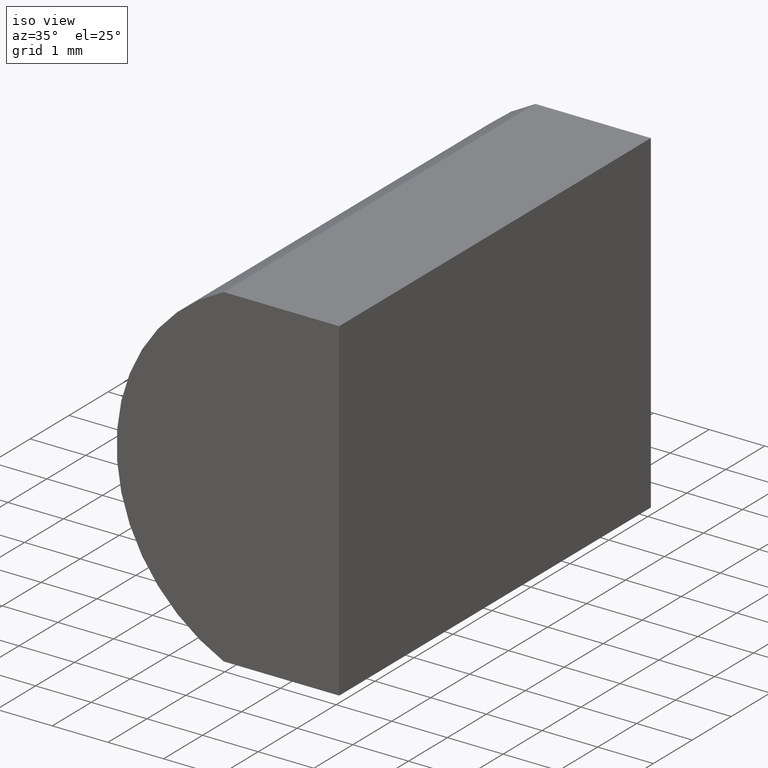
[diagram: clean part render]
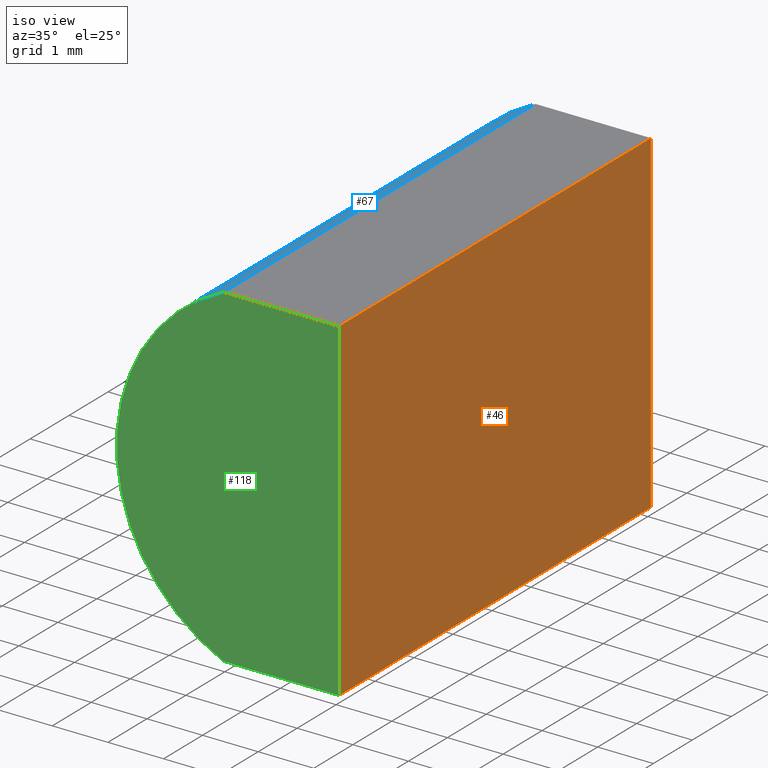
[diagram: same view with three faces highlighted in distinct colors, each labeled with its STEP entity id]
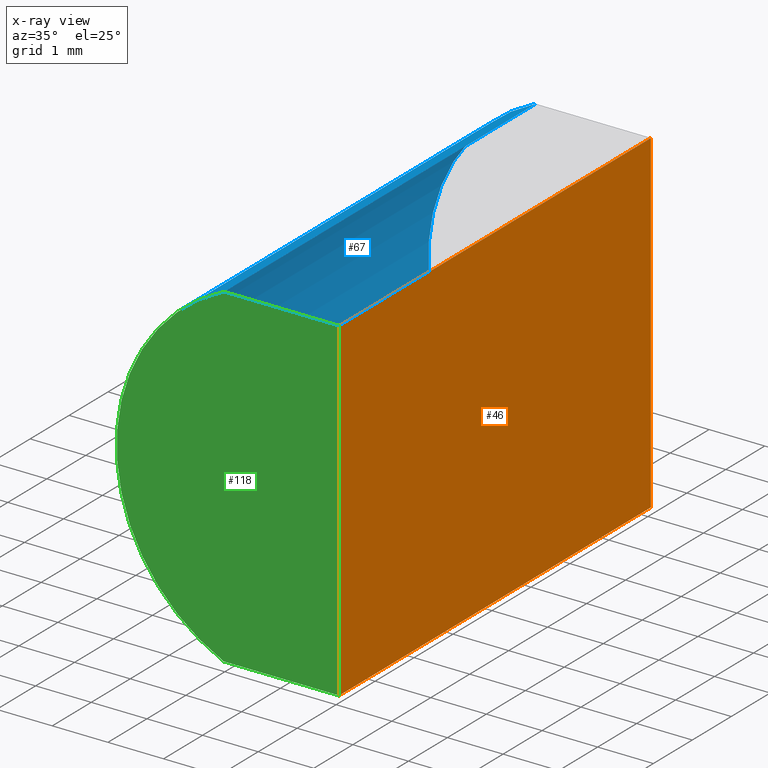
[diagram: x-ray of the same camera — body ghosted, the three highlighted faces saturated]
A machine part, iso view with three faces highlighted in distinct colors.
The next image is the same camera in x-ray (body ghosted, the three faces saturated) — at least one of them is partly hidden behind the body in this view.
Their STEP definitions:

[orange] entity #46 — the highlighted planar face has unit normal (-1, 0, 0).
#1 = ORIENTED_EDGE ( 'NONE', *, *, #180, .T. ) ;
#6 = CARTESIAN_POINT ( 'NONE',  ( 5.055204334851266500, 0.0000000000000000000, 3.000000000000000000 ) ) ;
#13 = ORIENTED_EDGE ( 'NONE', *, *, #186, .T. ) ;
#20 = PLANE ( 'NONE',  #135 ) ;
#32 = CARTESIAN_POINT ( 'NONE',  ( 5.055204334851264700, 8.000000000000000000, -3.000000000000000900 ) ) ;
#39 = FACE_OUTER_BOUND ( 'NONE', #127, .T. ) ;
#41 = DIRECTION ( 'NONE',  ( -0.0000000000000000000, -1.000000000000000000, -0.0000000000000000000 ) ) ;
#44 = ORIENTED_EDGE ( 'NONE', *, *, #141, .F. ) ;
#45 = CARTESIAN_POINT ( 'NONE',  ( 5.055204334851266500, 8.000000000000000000, 3.000000000000000000 ) ) ;
#46 = ADVANCED_FACE ( 'NONE', ( #39 ), #20, .F. ) ;
#49 = LINE ( 'NONE', #175, #144 ) ;
#52 = ORIENTED_EDGE ( 'NONE', *, *, #176, .F. ) ;
#53 = LINE ( 'NONE', #64, #199 ) ;
#59 = VERTEX_POINT ( 'NONE', #32 ) ;
#64 = CARTESIAN_POINT ( 'NONE',  ( 5.055204334851266500, 8.000000000000000000, 3.000000000000000000 ) ) ;
#70 = LINE ( 'NONE', #143, #104 ) ;
#74 = LINE ( 'NONE', #88, #156 ) ;
#75 = DIRECTION ( 'NONE',  ( -1.000000000000000000, 0.0000000000000000000, 2.891205793294678300E-016 ) ) ;
#88 = CARTESIAN_POINT ( 'NONE',  ( 5.055204334851264700, 8.000000000000000000, -3.000000000000000900 ) ) ;
#95 = DIRECTION ( 'NONE',  ( -2.891205793294678300E-016, -0.0000000000000000000, -1.000000000000000000 ) ) ;
#103 = DIRECTION ( 'NONE',  ( -0.0000000000000000000, -1.000000000000000000, -0.0000000000000000000 ) ) ;
#104 = VECTOR ( 'NONE', #41, 1000.000000000000000 ) ;
#115 = VERTEX_POINT ( 'NONE', #45 ) ;
#127 = EDGE_LOOP ( 'NONE', ( #13, #52, #44, #1 ) ) ;
#135 = AXIS2_PLACEMENT_3D ( 'NONE', #187, #75, #158 ) ;
#141 = EDGE_CURVE ( 'NONE', #115, #59, #74, .T. ) ;
#143 = CARTESIAN_POINT ( 'NONE',  ( 5.055204334851264700, 8.000000000000000000, -3.000000000000000900 ) ) ;
#144 = VECTOR ( 'NONE', #165, 1000.000000000000000 ) ;
#156 = VECTOR ( 'NONE', #95, 1000.000000000000000 ) ;
#158 = DIRECTION ( 'NONE',  ( 2.891205793294678300E-016, 0.0000000000000000000, 1.000000000000000000 ) ) ;
#163 = CARTESIAN_POINT ( 'NONE',  ( 5.055204334851264700, 0.0000000000000000000, -3.000000000000000900 ) ) ;
#165 = DIRECTION ( 'NONE',  ( -2.891205793294678300E-016, -0.0000000000000000000, -1.000000000000000000 ) ) ;
#175 = CARTESIAN_POINT ( 'NONE',  ( 5.055204334851264700, 0.0000000000000000000, -3.000000000000000900 ) ) ;
#176 = EDGE_CURVE ( 'NONE', #59, #179, #70, .T. ) ;
#179 = VERTEX_POINT ( 'NONE', #163 ) ;
#180 = EDGE_CURVE ( 'NONE', #115, #185, #53, .T. ) ;
#185 = VERTEX_POINT ( 'NONE', #6 ) ;
#186 = EDGE_CURVE ( 'NONE', #185, #179, #49, .T. ) ;
#187 = CARTESIAN_POINT ( 'NONE',  ( 5.055204334851264700, 8.000000000000000000, -3.000000000000000900 ) ) ;
#199 = VECTOR ( 'NONE', #103, 1000.000000000000000 ) ;

[blue] entity #67 — the highlighted cylindrical surface (partial cylindrical patch) has radius 3.3 mm, axis along (-0, -1, -0).
#2 = VECTOR ( 'NONE', #34, 1000.000000000000000 ) ;
#5 = DIRECTION ( 'NONE',  ( 0.0000000000000000000, 0.0000000000000000000, 1.000000000000000000 ) ) ;
#10 = EDGE_CURVE ( 'NONE', #120, #190, #196, .T. ) ;
#17 = DIRECTION ( 'NONE',  ( 0.0000000000000000000, 0.0000000000000000000, 1.000000000000000000 ) ) ;
#31 = CARTESIAN_POINT ( 'NONE',  ( 2.980431626364513400, 8.000000000000000000, 3.000000000000000400 ) ) ;
#34 = DIRECTION ( 'NONE',  ( -0.0000000000000000000, -1.000000000000000000, -0.0000000000000000000 ) ) ;
#35 = CARTESIAN_POINT ( 'NONE',  ( 4.355204334851265500, 0.0000000000000000000, 4.286263797015675000E-017 ) ) ;
#40 = EDGE_CURVE ( 'NONE', #90, #71, #43, .T. ) ;
#43 = LINE ( 'NONE', #31, #91 ) ;
#51 = CARTESIAN_POINT ( 'NONE',  ( 2.980431626364513400, 8.000000000000000000, -2.999999999999999600 ) ) ;
#56 = CARTESIAN_POINT ( 'NONE',  ( 2.980431626364513400, 0.0000000000000000000, -2.999999999999999600 ) ) ;
#63 = AXIS2_PLACEMENT_3D ( 'NONE', #131, #155, #202 ) ;
#67 = ADVANCED_FACE ( 'NONE', ( #130 ), #121, .T. ) ;
#71 = VERTEX_POINT ( 'NONE', #114 ) ;
#77 = AXIS2_PLACEMENT_3D ( 'NONE', #110, #195, #17 ) ;
#82 = DIRECTION ( 'NONE',  ( -0.0000000000000000000, -1.000000000000000000, -0.0000000000000000000 ) ) ;
#90 = VERTEX_POINT ( 'NONE', #136 ) ;
#91 = VECTOR ( 'NONE', #82, 1000.000000000000000 ) ;
#99 = EDGE_CURVE ( 'NONE', #190, #71, #177, .T. ) ;
#101 = EDGE_LOOP ( 'NONE', ( #157, #203, #133, #138 ) ) ;
#107 = AXIS2_PLACEMENT_3D ( 'NONE', #35, #111, #5 ) ;
#110 = CARTESIAN_POINT ( 'NONE',  ( 4.355204334851265500, 8.000000000000000000, 4.286263797015675000E-017 ) ) ;
#111 = DIRECTION ( 'NONE',  ( 0.0000000000000000000, 1.000000000000000000, 0.0000000000000000000 ) ) ;
#114 = CARTESIAN_POINT ( 'NONE',  ( 2.980431626364513400, 0.0000000000000000000, 3.000000000000000400 ) ) ;
#120 = VERTEX_POINT ( 'NONE', #51 ) ;
#121 = CYLINDRICAL_SURFACE ( 'NONE', #63, 3.299999999999999800 ) ;
#130 = FACE_OUTER_BOUND ( 'NONE', #101, .T. ) ;
#131 = CARTESIAN_POINT ( 'NONE',  ( 4.355204334851265500, 8.000000000000000000, 4.286263797015675000E-017 ) ) ;
#132 = EDGE_CURVE ( 'NONE', #120, #90, #200, .T. ) ;
#133 = ORIENTED_EDGE ( 'NONE', *, *, #132, .F. ) ;
#136 = CARTESIAN_POINT ( 'NONE',  ( 2.980431626364513400, 8.000000000000000000, 3.000000000000000400 ) ) ;
#138 = ORIENTED_EDGE ( 'NONE', *, *, #10, .T. ) ;
#140 = CARTESIAN_POINT ( 'NONE',  ( 2.980431626364513400, 8.000000000000000000, -2.999999999999999600 ) ) ;
#155 = DIRECTION ( 'NONE',  ( -0.0000000000000000000, -1.000000000000000000, -0.0000000000000000000 ) ) ;
#157 = ORIENTED_EDGE ( 'NONE', *, *, #99, .T. ) ;
#177 = CIRCLE ( 'NONE', #107, 3.299999999999999800 ) ;
#190 = VERTEX_POINT ( 'NONE', #56 ) ;
#195 = DIRECTION ( 'NONE',  ( 0.0000000000000000000, 1.000000000000000000, 0.0000000000000000000 ) ) ;
#196 = LINE ( 'NONE', #140, #2 ) ;
#200 = CIRCLE ( 'NONE', #77, 3.299999999999999800 ) ;
#202 = DIRECTION ( 'NONE',  ( 0.0000000000000000000, 0.0000000000000000000, -1.000000000000000000 ) ) ;
#203 = ORIENTED_EDGE ( 'NONE', *, *, #40, .F. ) ;

[green] entity #118 — the highlighted planar face has unit normal (0, 1, 0).
#5 = DIRECTION ( 'NONE',  ( 0.0000000000000000000, 0.0000000000000000000, 1.000000000000000000 ) ) ;
#6 = CARTESIAN_POINT ( 'NONE',  ( 5.055204334851266500, 0.0000000000000000000, 3.000000000000000000 ) ) ;
#8 = EDGE_CURVE ( 'NONE', #179, #190, #172, .T. ) ;
#9 = DIRECTION ( 'NONE',  ( 0.0000000000000000000, -0.0000000000000000000, 1.000000000000000000 ) ) ;
#16 = ORIENTED_EDGE ( 'NONE', *, *, #8, .F. ) ;
#27 = VECTOR ( 'NONE', #150, 1000.000000000000000 ) ;
#35 = CARTESIAN_POINT ( 'NONE',  ( 4.355204334851265500, 0.0000000000000000000, 4.286263797015675000E-017 ) ) ;
#47 = FACE_OUTER_BOUND ( 'NONE', #65, .T. ) ;
#49 = LINE ( 'NONE', #175, #144 ) ;
#56 = CARTESIAN_POINT ( 'NONE',  ( 2.980431626364513400, 0.0000000000000000000, -2.999999999999999600 ) ) ;
#58 = AXIS2_PLACEMENT_3D ( 'NONE', #192, #149, #9 ) ;
#65 = EDGE_LOOP ( 'NONE', ( #193, #16, #94, #97 ) ) ;
#71 = VERTEX_POINT ( 'NONE', #114 ) ;
#79 = CARTESIAN_POINT ( 'NONE',  ( 2.980431626364513400, 0.0000000000000000000, -2.999999999999999600 ) ) ;
#83 = LINE ( 'NONE', #160, #178 ) ;
#84 = EDGE_CURVE ( 'NONE', #71, #185, #83, .T. ) ;
#94 = ORIENTED_EDGE ( 'NONE', *, *, #186, .F. ) ;
#97 = ORIENTED_EDGE ( 'NONE', *, *, #84, .F. ) ;
#99 = EDGE_CURVE ( 'NONE', #190, #71, #177, .T. ) ;
#107 = AXIS2_PLACEMENT_3D ( 'NONE', #35, #111, #5 ) ;
#111 = DIRECTION ( 'NONE',  ( 0.0000000000000000000, 1.000000000000000000, 0.0000000000000000000 ) ) ;
#114 = CARTESIAN_POINT ( 'NONE',  ( 2.980431626364513400, 0.0000000000000000000, 3.000000000000000400 ) ) ;
#118 = ADVANCED_FACE ( 'NONE', ( #47 ), #159, .F. ) ;
#144 = VECTOR ( 'NONE', #165, 1000.000000000000000 ) ;
#149 = DIRECTION ( 'NONE',  ( 0.0000000000000000000, 1.000000000000000000, 0.0000000000000000000 ) ) ;
#150 = DIRECTION ( 'NONE',  ( -1.000000000000000000, -0.0000000000000000000, 6.270771741216556800E-016 ) ) ;
#151 = DIRECTION ( 'NONE',  ( 1.000000000000000000, 0.0000000000000000000, -2.090257247072183900E-016 ) ) ;
#159 = PLANE ( 'NONE',  #58 ) ;
#160 = CARTESIAN_POINT ( 'NONE',  ( 2.980431626364513400, 0.0000000000000000000, 3.000000000000000400 ) ) ;
#163 = CARTESIAN_POINT ( 'NONE',  ( 5.055204334851264700, 0.0000000000000000000, -3.000000000000000900 ) ) ;
#165 = DIRECTION ( 'NONE',  ( -2.891205793294678300E-016, -0.0000000000000000000, -1.000000000000000000 ) ) ;
#172 = LINE ( 'NONE', #79, #27 ) ;
#175 = CARTESIAN_POINT ( 'NONE',  ( 5.055204334851264700, 0.0000000000000000000, -3.000000000000000900 ) ) ;
#177 = CIRCLE ( 'NONE', #107, 3.299999999999999800 ) ;
#178 = VECTOR ( 'NONE', #151, 1000.000000000000000 ) ;
#179 = VERTEX_POINT ( 'NONE', #163 ) ;
#185 = VERTEX_POINT ( 'NONE', #6 ) ;
#186 = EDGE_CURVE ( 'NONE', #185, #179, #49, .T. ) ;
#190 = VERTEX_POINT ( 'NONE', #56 ) ;
#192 = CARTESIAN_POINT ( 'NONE',  ( 4.355204334851265500, 0.0000000000000000000, 4.286263797015675000E-017 ) ) ;
#193 = ORIENTED_EDGE ( 'NONE', *, *, #99, .F. ) ;